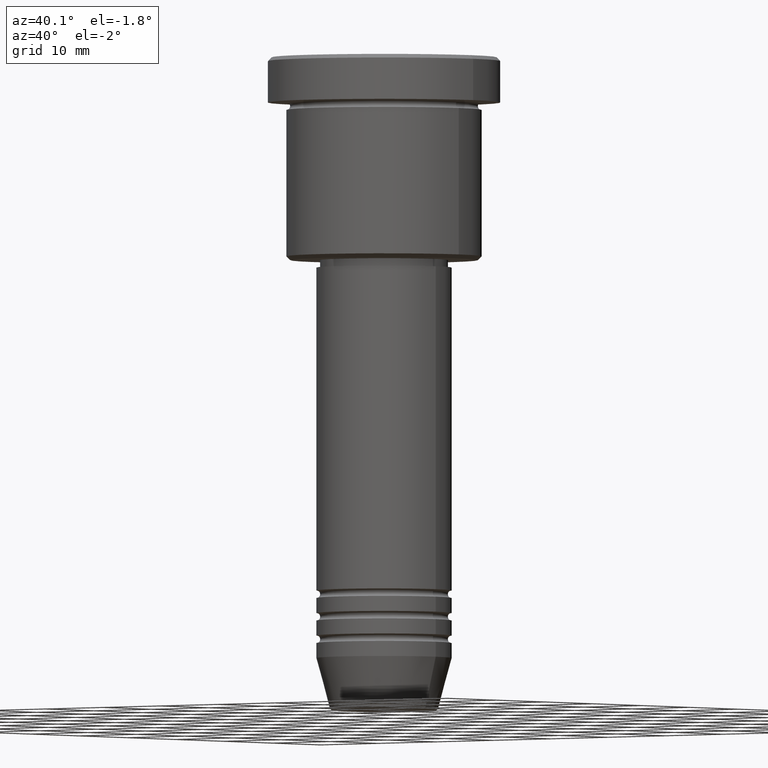
[diagram: clean part render]
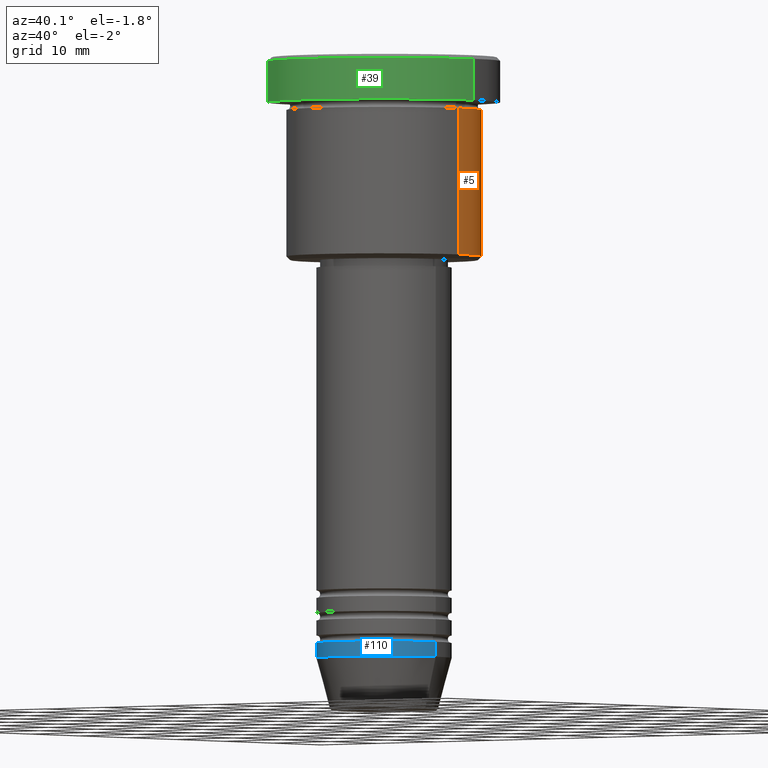
[diagram: same view with three faces highlighted in distinct colors, each labeled with its STEP entity id]
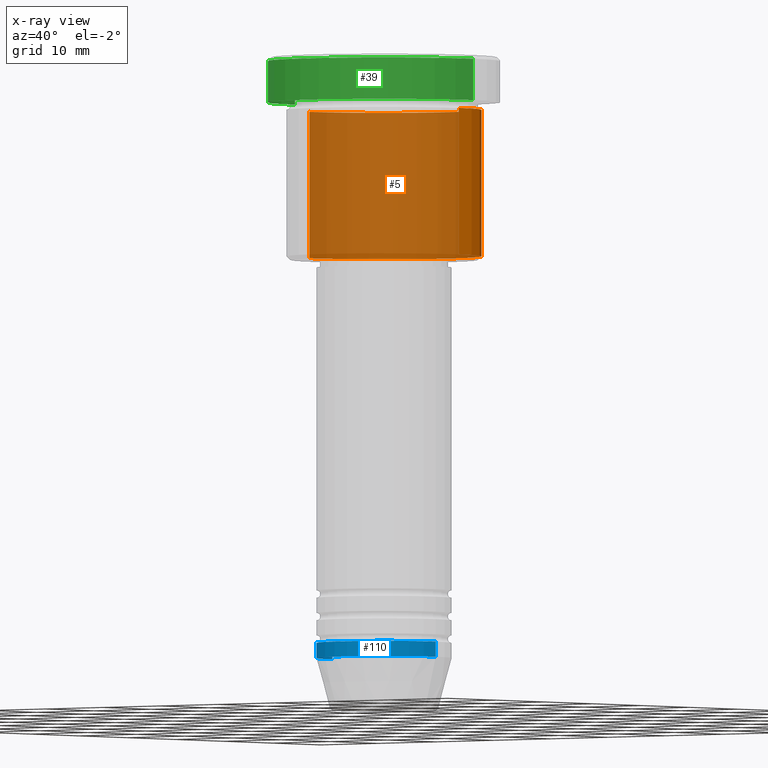
[diagram: x-ray of the same camera — body ghosted, the three highlighted faces saturated]
A machine part, auxiliary view with three faces highlighted in distinct colors.
The next image is the same camera in x-ray (body ghosted, the three faces saturated) — at least one of them is partly hidden behind the body in this view.
Their STEP definitions:

[orange] entity #5 — the highlighted cylindrical surface (partial cylindrical patch) has radius 13 mm, axis along (-0, -0, 1).
#5 = ADVANCED_FACE ( 'NONE', ( #213 ), #574, .T. ) ;
#52 = CARTESIAN_POINT ( 'NONE',  ( -13.00000000000000000, 1.592040838891559095E-15, -26.49999999999998224 ) ) ;
#58 = DIRECTION ( 'NONE',  ( -0.000000000000000000, -0.000000000000000000, 1.000000000000000000 ) ) ;
#80 = DIRECTION ( 'NONE',  ( 1.000000000000000000, 0.000000000000000000, 0.000000000000000000 ) ) ;
#138 = DIRECTION ( 'NONE',  ( -0.000000000000000000, -0.000000000000000000, 1.000000000000000000 ) ) ;
#145 = CARTESIAN_POINT ( 'NONE',  ( 13.00000000000000000, 0.000000000000000000, -26.49999999999998224 ) ) ;
#151 = CARTESIAN_POINT ( 'NONE',  ( 0.000000000000000000, 0.000000000000000000, -6.999999999999995559 ) ) ;
#213 = FACE_OUTER_BOUND ( 'NONE', #1153, .T. ) ;
#255 = EDGE_CURVE ( 'NONE', #453, #1142, #538, .T. ) ;
#263 = AXIS2_PLACEMENT_3D ( 'NONE', #151, #138, #300 ) ;
#300 = DIRECTION ( 'NONE',  ( 1.000000000000000000, 0.000000000000000000, 0.000000000000000000 ) ) ;
#333 = DIRECTION ( 'NONE',  ( -0.000000000000000000, -0.000000000000000000, 1.000000000000000000 ) ) ;
#407 = EDGE_CURVE ( 'NONE', #1027, #453, #480, .T. ) ;
#443 = CARTESIAN_POINT ( 'NONE',  ( 13.00000000000000000, 0.000000000000000000, 0.000000000000000000 ) ) ;
#453 = VERTEX_POINT ( 'NONE', #52 ) ;
#473 = CARTESIAN_POINT ( 'NONE',  ( 13.00000000000000000, 0.000000000000000000, -6.999999999999995559 ) ) ;
#480 = CIRCLE ( 'NONE', #1152, 13.00000000000000000 ) ;
#506 = CARTESIAN_POINT ( 'NONE',  ( 0.000000000000000000, 0.000000000000000000, 0.000000000000000000 ) ) ;
#509 = ORIENTED_EDGE ( 'NONE', *, *, #1034, .F. ) ;
#532 = LINE ( 'NONE', #443, #793 ) ;
#538 = LINE ( 'NONE', #697, #594 ) ;
#574 = CYLINDRICAL_SURFACE ( 'NONE', #1080, 13.00000000000000000 ) ;
#594 = VECTOR ( 'NONE', #333, 1000.000000000000000 ) ;
#608 = DIRECTION ( 'NONE',  ( -0.000000000000000000, -0.000000000000000000, 1.000000000000000000 ) ) ;
#697 = CARTESIAN_POINT ( 'NONE',  ( -13.00000000000000000, 1.592040838891559095E-15, 0.000000000000000000 ) ) ;
#709 = VERTEX_POINT ( 'NONE', #473 ) ;
#711 = DIRECTION ( 'NONE',  ( -0.000000000000000000, -0.000000000000000000, 1.000000000000000000 ) ) ;
#745 = ORIENTED_EDGE ( 'NONE', *, *, #407, .T. ) ;
#747 = EDGE_CURVE ( 'NONE', #1027, #709, #532, .T. ) ;
#768 = DIRECTION ( 'NONE',  ( -1.000000000000000000, 0.000000000000000000, 0.000000000000000000 ) ) ;
#793 = VECTOR ( 'NONE', #58, 1000.000000000000000 ) ;
#853 = CIRCLE ( 'NONE', #263, 13.00000000000000000 ) ;
#950 = CARTESIAN_POINT ( 'NONE',  ( -13.00000000000000000, 1.592040838891559095E-15, -6.999999999999995559 ) ) ;
#975 = ORIENTED_EDGE ( 'NONE', *, *, #747, .F. ) ;
#985 = ORIENTED_EDGE ( 'NONE', *, *, #255, .T. ) ;
#988 = CARTESIAN_POINT ( 'NONE',  ( 0.000000000000000000, 0.000000000000000000, -26.49999999999998224 ) ) ;
#1027 = VERTEX_POINT ( 'NONE', #145 ) ;
#1034 = EDGE_CURVE ( 'NONE', #709, #1142, #853, .T. ) ;
#1080 = AXIS2_PLACEMENT_3D ( 'NONE', #506, #711, #80 ) ;
#1142 = VERTEX_POINT ( 'NONE', #950 ) ;
#1152 = AXIS2_PLACEMENT_3D ( 'NONE', #988, #608, #768 ) ;
#1153 = EDGE_LOOP ( 'NONE', ( #745, #985, #509, #975 ) ) ;

[blue] entity #110 — the highlighted cylindrical surface (partial cylindrical patch) has radius 9 mm, axis along (-0, -0, 1).
#6 = CARTESIAN_POINT ( 'NONE',  ( 0.000000000000000000, 0.000000000000000000, 0.000000000000000000 ) ) ;
#14 = DIRECTION ( 'NONE',  ( 1.000000000000000000, 0.000000000000000000, 0.000000000000000000 ) ) ;
#54 = CARTESIAN_POINT ( 'NONE',  ( 9.000000000000000000, 0.000000000000000000, -79.99999999999998579 ) ) ;
#105 = AXIS2_PLACEMENT_3D ( 'NONE', #6, #371, #14 ) ;
#110 = ADVANCED_FACE ( 'NONE', ( #656 ), #928, .T. ) ;
#115 = CARTESIAN_POINT ( 'NONE',  ( 9.000000000000000000, 0.000000000000000000, 0.000000000000000000 ) ) ;
#123 = AXIS2_PLACEMENT_3D ( 'NONE', #414, #1084, #266 ) ;
#153 = LINE ( 'NONE', #1090, #555 ) ;
#266 = DIRECTION ( 'NONE',  ( 1.000000000000000000, 0.000000000000000000, 0.000000000000000000 ) ) ;
#267 = EDGE_CURVE ( 'NONE', #587, #1175, #153, .T. ) ;
#273 = DIRECTION ( 'NONE',  ( -0.000000000000000000, -0.000000000000000000, 1.000000000000000000 ) ) ;
#332 = ORIENTED_EDGE ( 'NONE', *, *, #599, .F. ) ;
#371 = DIRECTION ( 'NONE',  ( -0.000000000000000000, -0.000000000000000000, 1.000000000000000000 ) ) ;
#374 = CARTESIAN_POINT ( 'NONE',  ( 0.000000000000000000, 0.000000000000000000, -77.99999999999998579 ) ) ;
#414 = CARTESIAN_POINT ( 'NONE',  ( 0.000000000000000000, 0.000000000000000000, -79.99999999999998579 ) ) ;
#423 = CIRCLE ( 'NONE', #579, 9.000000000000000000 ) ;
#463 = EDGE_CURVE ( 'NONE', #587, #1031, #833, .T. ) ;
#555 = VECTOR ( 'NONE', #721, 1000.000000000000000 ) ;
#579 = AXIS2_PLACEMENT_3D ( 'NONE', #374, #273, #818 ) ;
#587 = VERTEX_POINT ( 'NONE', #1075 ) ;
#593 = ORIENTED_EDGE ( 'NONE', *, *, #463, .T. ) ;
#599 = EDGE_CURVE ( 'NONE', #1175, #998, #423, .T. ) ;
#656 = FACE_OUTER_BOUND ( 'NONE', #680, .T. ) ;
#673 = EDGE_CURVE ( 'NONE', #1031, #998, #942, .T. ) ;
#676 = ORIENTED_EDGE ( 'NONE', *, *, #673, .T. ) ;
#680 = EDGE_LOOP ( 'NONE', ( #1133, #593, #676, #332 ) ) ;
#721 = DIRECTION ( 'NONE',  ( -0.000000000000000000, -0.000000000000000000, 1.000000000000000000 ) ) ;
#818 = DIRECTION ( 'NONE',  ( 1.000000000000000000, 0.000000000000000000, 0.000000000000000000 ) ) ;
#827 = CARTESIAN_POINT ( 'NONE',  ( 9.000000000000000000, 0.000000000000000000, -77.99999999999998579 ) ) ;
#833 = CIRCLE ( 'NONE', #123, 9.000000000000000000 ) ;
#928 = CYLINDRICAL_SURFACE ( 'NONE', #105, 9.000000000000000000 ) ;
#942 = LINE ( 'NONE', #115, #1154 ) ;
#977 = CARTESIAN_POINT ( 'NONE',  ( -9.000000000000000000, 1.102182119232617714E-15, -77.99999999999998579 ) ) ;
#998 = VERTEX_POINT ( 'NONE', #827 ) ;
#1031 = VERTEX_POINT ( 'NONE', #54 ) ;
#1075 = CARTESIAN_POINT ( 'NONE',  ( -9.000000000000000000, 1.102182119232617714E-15, -79.99999999999998579 ) ) ;
#1084 = DIRECTION ( 'NONE',  ( -0.000000000000000000, -0.000000000000000000, 1.000000000000000000 ) ) ;
#1090 = CARTESIAN_POINT ( 'NONE',  ( -9.000000000000000000, 1.102182119232617714E-15, 0.000000000000000000 ) ) ;
#1119 = DIRECTION ( 'NONE',  ( -0.000000000000000000, -0.000000000000000000, 1.000000000000000000 ) ) ;
#1133 = ORIENTED_EDGE ( 'NONE', *, *, #267, .F. ) ;
#1154 = VECTOR ( 'NONE', #1119, 1000.000000000000000 ) ;
#1175 = VERTEX_POINT ( 'NONE', #977 ) ;

[green] entity #39 — the highlighted cylindrical surface (partial cylindrical patch) has radius 15.5 mm, axis along (-0, -0, 1).
#23 = ORIENTED_EDGE ( 'NONE', *, *, #303, .T. ) ;
#39 = ADVANCED_FACE ( 'NONE', ( #59 ), #344, .T. ) ;
#59 = FACE_OUTER_BOUND ( 'NONE', #843, .T. ) ;
#97 = EDGE_CURVE ( 'NONE', #118, #170, #949, .T. ) ;
#101 = CARTESIAN_POINT ( 'NONE',  ( -15.50000000000000000, 1.898202538678397557E-15, 0.000000000000000000 ) ) ;
#118 = VERTEX_POINT ( 'NONE', #732 ) ;
#170 = VERTEX_POINT ( 'NONE', #552 ) ;
#192 = AXIS2_PLACEMENT_3D ( 'NONE', #590, #773, #491 ) ;
#303 = EDGE_CURVE ( 'NONE', #996, #118, #686, .T. ) ;
#324 = CARTESIAN_POINT ( 'NONE',  ( 0.000000000000000000, 0.000000000000000000, -0.4999999999999987232 ) ) ;
#330 = VECTOR ( 'NONE', #1105, 1000.000000000000000 ) ;
#344 = CYLINDRICAL_SURFACE ( 'NONE', #847, 15.50000000000000000 ) ;
#420 = CARTESIAN_POINT ( 'NONE',  ( 0.000000000000000000, 0.000000000000000000, 0.000000000000000000 ) ) ;
#424 = VERTEX_POINT ( 'NONE', #1043 ) ;
#430 = DIRECTION ( 'NONE',  ( -0.000000000000000000, -0.000000000000000000, 1.000000000000000000 ) ) ;
#449 = CIRCLE ( 'NONE', #192, 15.50000000000000000 ) ;
#469 = DIRECTION ( 'NONE',  ( 0.000000000000000000, 0.000000000000000000, -1.000000000000000000 ) ) ;
#490 = ORIENTED_EDGE ( 'NONE', *, *, #876, .F. ) ;
#491 = DIRECTION ( 'NONE',  ( 1.000000000000000000, 0.000000000000000000, 0.000000000000000000 ) ) ;
#542 = AXIS2_PLACEMENT_3D ( 'NONE', #324, #469, #1011 ) ;
#552 = CARTESIAN_POINT ( 'NONE',  ( -15.50000000000000000, 1.898202538678397557E-15, -0.4999999999999987232 ) ) ;
#578 = VECTOR ( 'NONE', #880, 1000.000000000000000 ) ;
#590 = CARTESIAN_POINT ( 'NONE',  ( 0.000000000000000000, 0.000000000000000000, -5.999999999999995559 ) ) ;
#613 = CARTESIAN_POINT ( 'NONE',  ( 15.50000000000000000, 0.000000000000000000, 0.000000000000000000 ) ) ;
#645 = LINE ( 'NONE', #101, #330 ) ;
#686 = LINE ( 'NONE', #613, #578 ) ;
#732 = CARTESIAN_POINT ( 'NONE',  ( 15.50000000000000000, 0.000000000000000000, -0.4999999999999987232 ) ) ;
#743 = CARTESIAN_POINT ( 'NONE',  ( 15.50000000000000000, 0.000000000000000000, -5.999999999999995559 ) ) ;
#773 = DIRECTION ( 'NONE',  ( -0.000000000000000000, -0.000000000000000000, 1.000000000000000000 ) ) ;
#843 = EDGE_LOOP ( 'NONE', ( #490, #1166, #23, #1127 ) ) ;
#847 = AXIS2_PLACEMENT_3D ( 'NONE', #420, #430, #1076 ) ;
#876 = EDGE_CURVE ( 'NONE', #424, #170, #645, .T. ) ;
#880 = DIRECTION ( 'NONE',  ( -0.000000000000000000, -0.000000000000000000, 1.000000000000000000 ) ) ;
#949 = CIRCLE ( 'NONE', #542, 15.50000000000000000 ) ;
#996 = VERTEX_POINT ( 'NONE', #743 ) ;
#1011 = DIRECTION ( 'NONE',  ( 1.000000000000000000, 0.000000000000000000, 0.000000000000000000 ) ) ;
#1043 = CARTESIAN_POINT ( 'NONE',  ( -15.50000000000000000, 1.898202538678397557E-15, -5.999999999999995559 ) ) ;
#1076 = DIRECTION ( 'NONE',  ( 1.000000000000000000, 0.000000000000000000, 0.000000000000000000 ) ) ;
#1105 = DIRECTION ( 'NONE',  ( -0.000000000000000000, -0.000000000000000000, 1.000000000000000000 ) ) ;
#1117 = EDGE_CURVE ( 'NONE', #424, #996, #449, .T. ) ;
#1127 = ORIENTED_EDGE ( 'NONE', *, *, #97, .T. ) ;
#1166 = ORIENTED_EDGE ( 'NONE', *, *, #1117, .T. ) ;